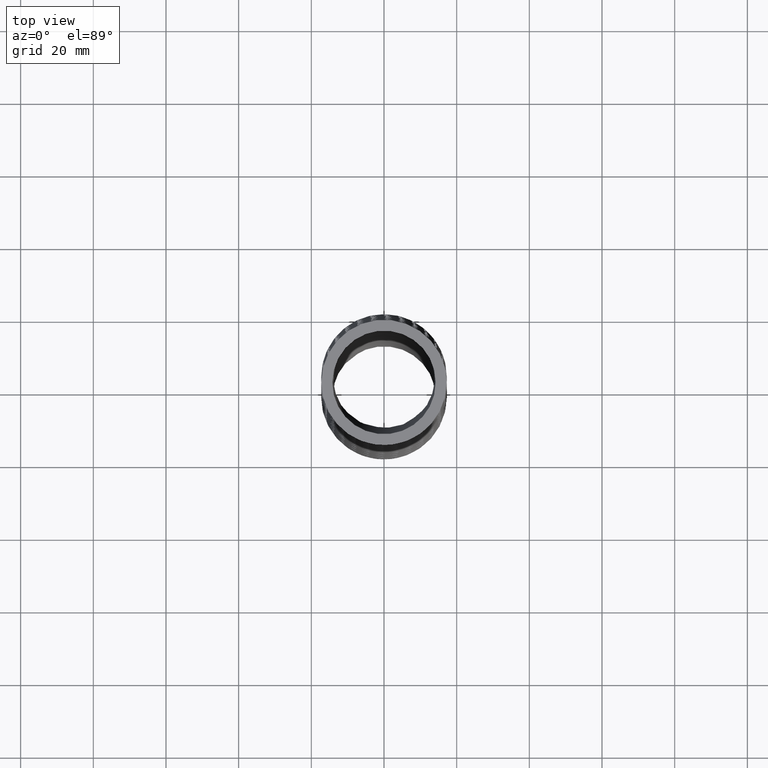
[diagram: clean part render]
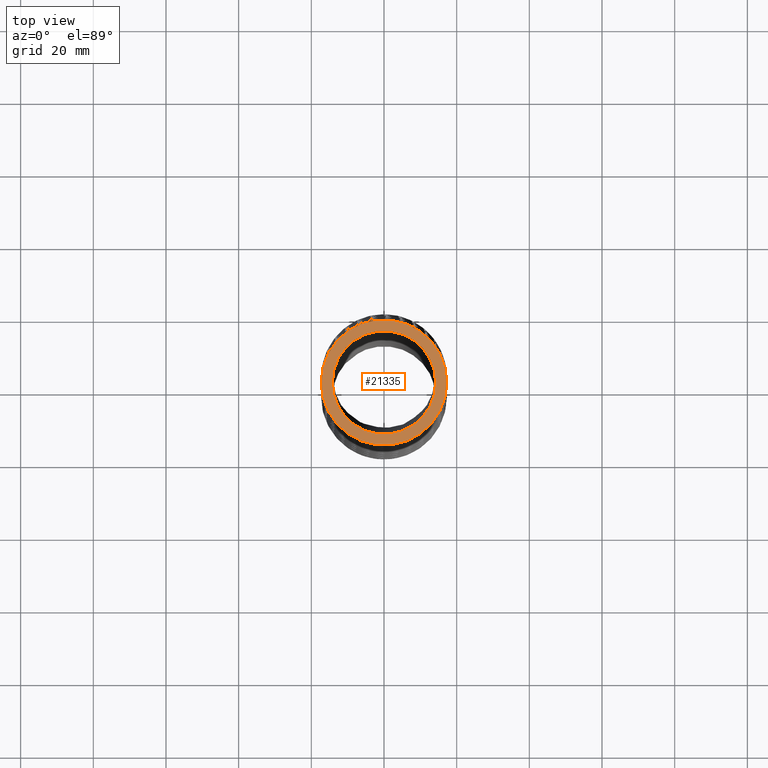
[diagram: same view with one face highlighted and labeled with its STEP entity id]
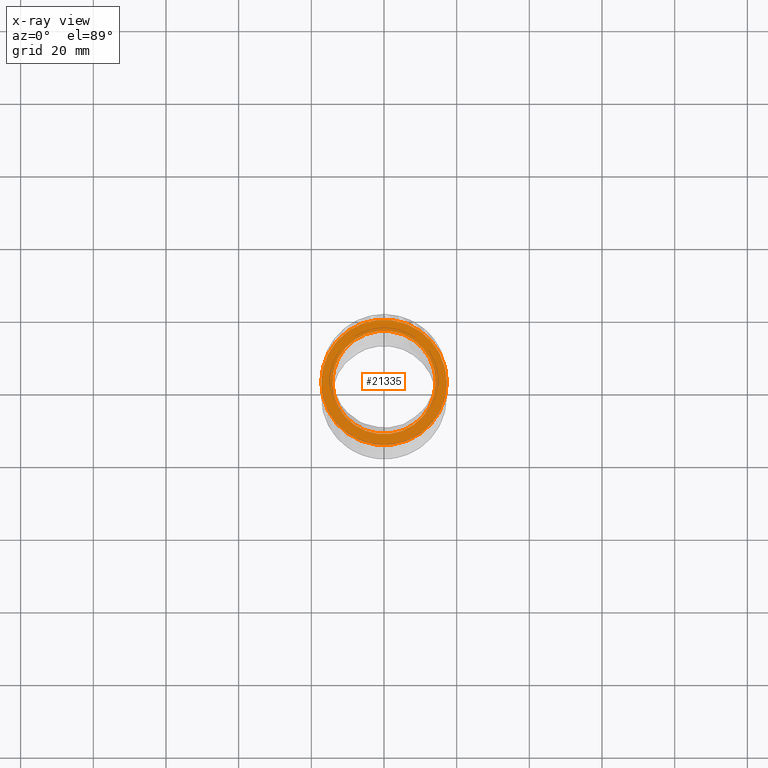
[diagram: x-ray of the same camera — body ghosted, the highlighted face saturated]
A machine part, top view. The second image highlights one B-rep face of the part: STEP entity #21335.
The next image is the same camera in x-ray: the body ghosted, the highlighted face saturated — about 0% of this face is hidden behind the body in this view.
In plain terms, the highlighted planar face has unit normal (0, 0, 1).
Its self-contained STEP definition (entity closure, byte-faithful):
#8788 = CARTESIAN_POINT ( 'NONE',  ( 0.5600000000000000500, 0.0000000000000000000, 0.0000000000000000000 ) ) ;
#8789 = DIRECTION ( 'NONE',  ( 1.000000000000000000, 0.0000000000000000000, 0.0000000000000000000 ) ) ;
#8790 = DIRECTION ( 'NONE',  ( 0.0000000000000000000, 0.0000000000000000000, 1.000000000000000000 ) ) ;
#8791 = CARTESIAN_POINT ( 'NONE',  ( 0.0000000000000000000, 0.0000000000000000000, 0.0000000000000000000 ) ) ;
#8792 = AXIS2_PLACEMENT_3D ( 'NONE', #8791, #8790, #8789 ) ;
#8793 = CIRCLE ( 'NONE', #8792, 0.5600000000000000500 ) ;
#8794 = CARTESIAN_POINT ( 'NONE',  ( -0.5600000000000000500, 6.858022075225177600E-017, 0.0000000000000000000 ) ) ;
#9605 = VERTEX_POINT ( 'NONE', #8794 ) ;
#9606 = EDGE_CURVE ( 'NONE', #9609, #9605, #8793, .T. ) ;
#9609 = VERTEX_POINT ( 'NONE', #8788 ) ;
#9674 = EDGE_CURVE ( 'NONE', #9675, #9676, #12233, .T. ) ;
#9675 = VERTEX_POINT ( 'NONE', #12234 ) ;
#9676 = VERTEX_POINT ( 'NONE', #12228 ) ;
#12228 = CARTESIAN_POINT ( 'NONE',  ( 0.6799999999999999400, 0.0000000000000000000, 0.0000000000000000000 ) ) ;
#12229 = DIRECTION ( 'NONE',  ( 1.000000000000000000, 0.0000000000000000000, 0.0000000000000000000 ) ) ;
#12230 = DIRECTION ( 'NONE',  ( 0.0000000000000000000, 0.0000000000000000000, 1.000000000000000000 ) ) ;
#12231 = CARTESIAN_POINT ( 'NONE',  ( 0.0000000000000000000, 0.0000000000000000000, 0.0000000000000000000 ) ) ;
#12232 = AXIS2_PLACEMENT_3D ( 'NONE', #12231, #12230, #12229 ) ;
#12233 = CIRCLE ( 'NONE', #12232, 0.6799999999999999400 ) ;
#12234 = CARTESIAN_POINT ( 'NONE',  ( -0.6799999999999999400, 8.327598234202001900E-017, 0.0000000000000000000 ) ) ;
#19998 = DIRECTION ( 'NONE',  ( 1.000000000000000000, 0.0000000000000000000, 0.0000000000000000000 ) ) ;
#20000 = CIRCLE ( 'NONE', #20004, 0.6799999999999999400 ) ;
#20002 = DIRECTION ( 'NONE',  ( 0.0000000000000000000, 0.0000000000000000000, 1.000000000000000000 ) ) ;
#20003 = CARTESIAN_POINT ( 'NONE',  ( 0.0000000000000000000, 0.0000000000000000000, 0.0000000000000000000 ) ) ;
#20004 = AXIS2_PLACEMENT_3D ( 'NONE', #20003, #20002, #19998 ) ;
#20254 = FACE_OUTER_BOUND ( 'NONE', #21378, .T. ) ;
#20255 = FACE_BOUND ( 'NONE', #21333, .T. ) ;
#20313 = DIRECTION ( 'NONE',  ( 1.000000000000000000, 0.0000000000000000000, 0.0000000000000000000 ) ) ;
#20314 = DIRECTION ( 'NONE',  ( 0.0000000000000000000, 0.0000000000000000000, 1.000000000000000000 ) ) ;
#20315 = CARTESIAN_POINT ( 'NONE',  ( 0.0000000000000000000, 0.0000000000000000000, 0.0000000000000000000 ) ) ;
#20316 = AXIS2_PLACEMENT_3D ( 'NONE', #20315, #20314, #20313 ) ;
#20317 = PLANE ( 'NONE',  #20316 ) ;
#20694 = DIRECTION ( 'NONE',  ( 1.000000000000000000, 0.0000000000000000000, 0.0000000000000000000 ) ) ;
#20695 = DIRECTION ( 'NONE',  ( 0.0000000000000000000, 0.0000000000000000000, 1.000000000000000000 ) ) ;
#20696 = CARTESIAN_POINT ( 'NONE',  ( 0.0000000000000000000, 0.0000000000000000000, 0.0000000000000000000 ) ) ;
#20697 = AXIS2_PLACEMENT_3D ( 'NONE', #20696, #20695, #20694 ) ;
#20698 = CIRCLE ( 'NONE', #20697, 0.5600000000000000500 ) ;
#21311 = EDGE_CURVE ( 'NONE', #9676, #9675, #20000, .T. ) ;
#21333 = EDGE_LOOP ( 'NONE', ( #21391, #21389 ) ) ;
#21335 = ADVANCED_FACE ( 'NONE', ( #20255, #20254 ), #20317, .T. ) ;
#21375 = ORIENTED_EDGE ( 'NONE', *, *, #9674, .T. ) ;
#21376 = ORIENTED_EDGE ( 'NONE', *, *, #21311, .T. ) ;
#21378 = EDGE_LOOP ( 'NONE', ( #21376, #21375 ) ) ;
#21386 = EDGE_CURVE ( 'NONE', #9605, #9609, #20698, .T. ) ;
#21389 = ORIENTED_EDGE ( 'NONE', *, *, #21386, .F. ) ;
#21391 = ORIENTED_EDGE ( 'NONE', *, *, #9606, .F. ) ;